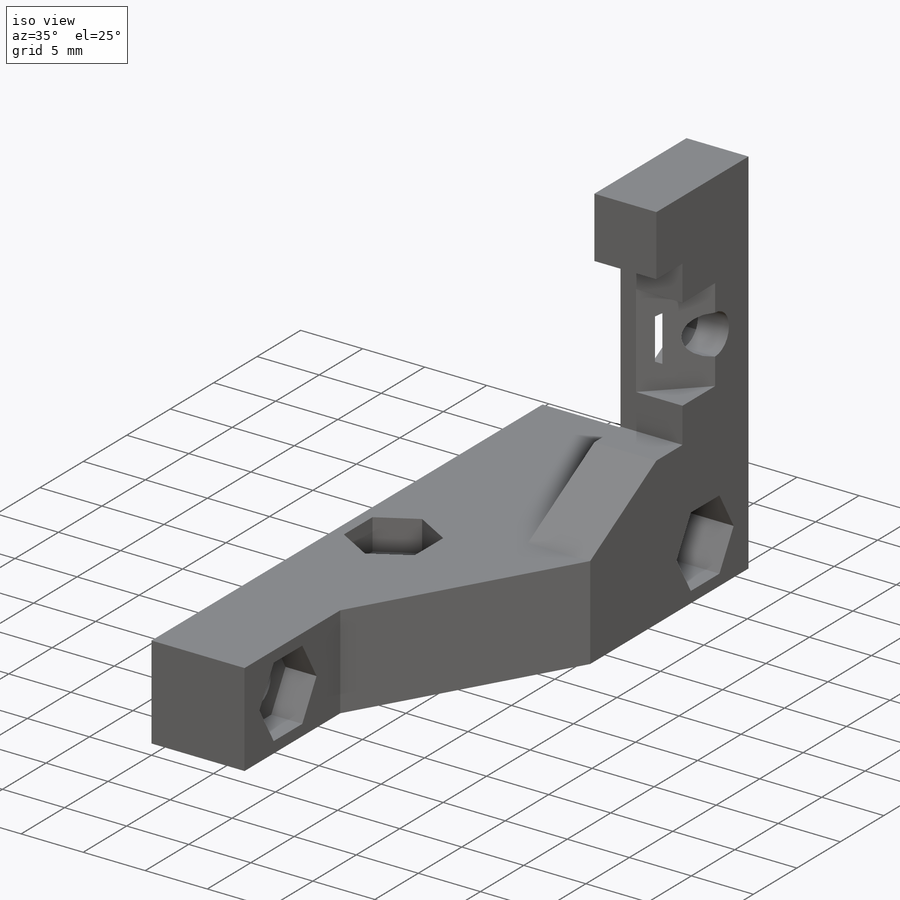
[diagram: iso view]
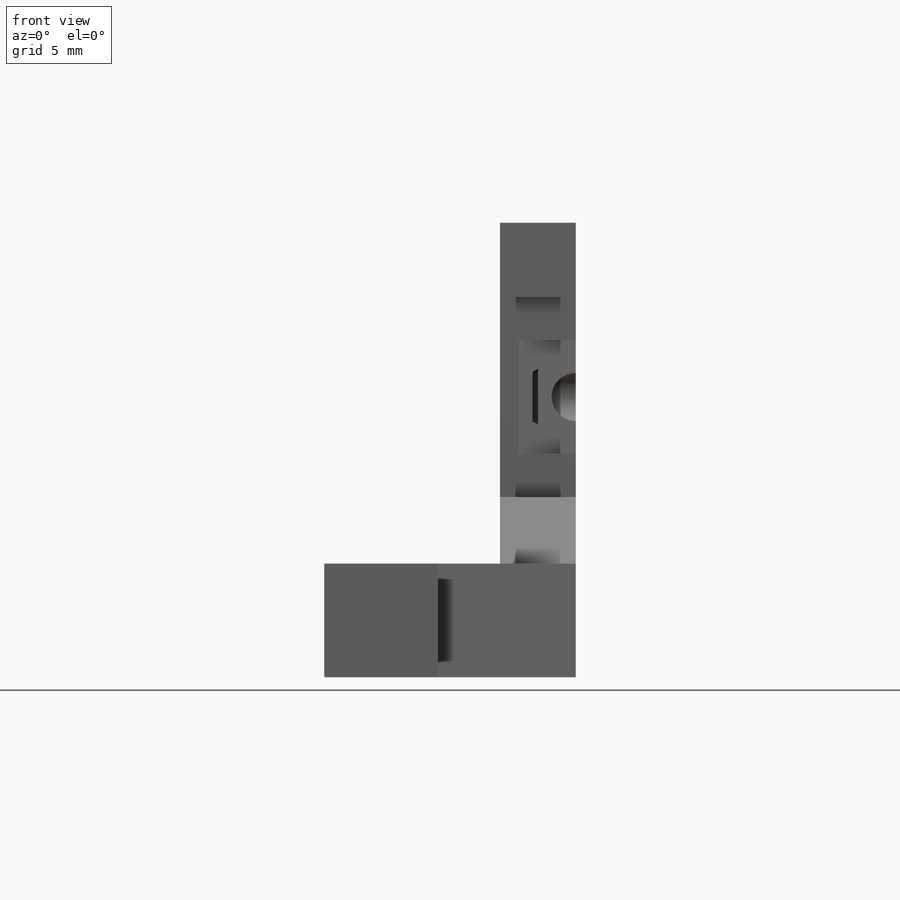
[diagram: front view]
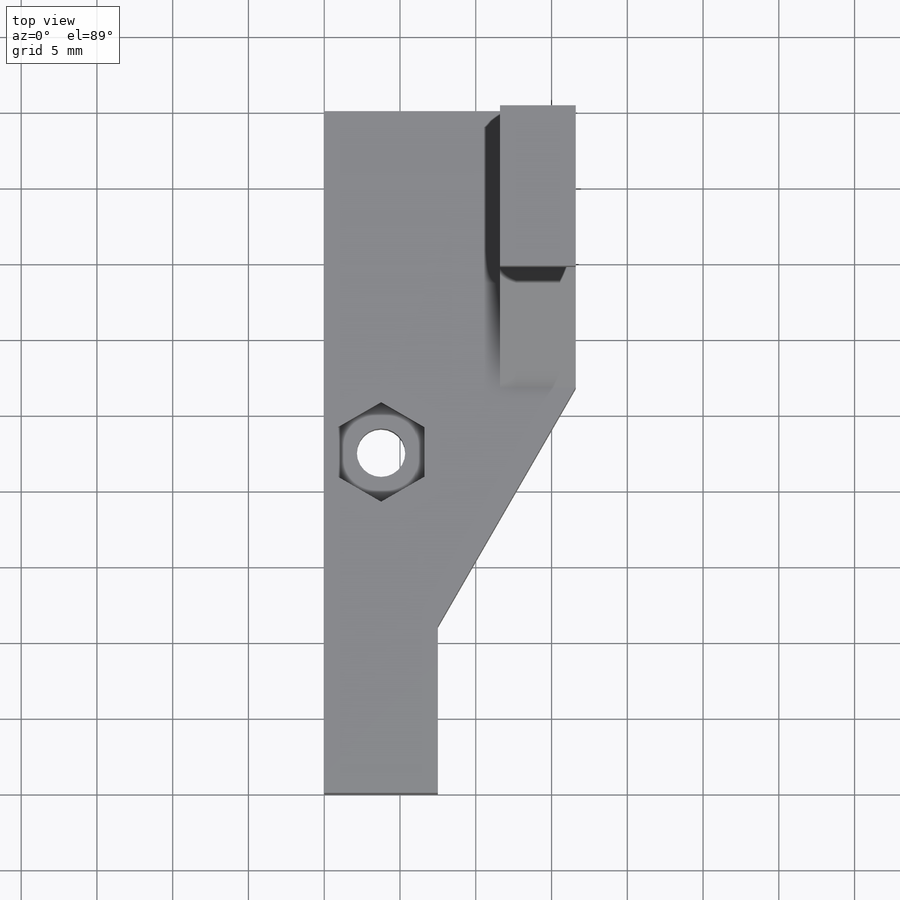
[diagram: top view]
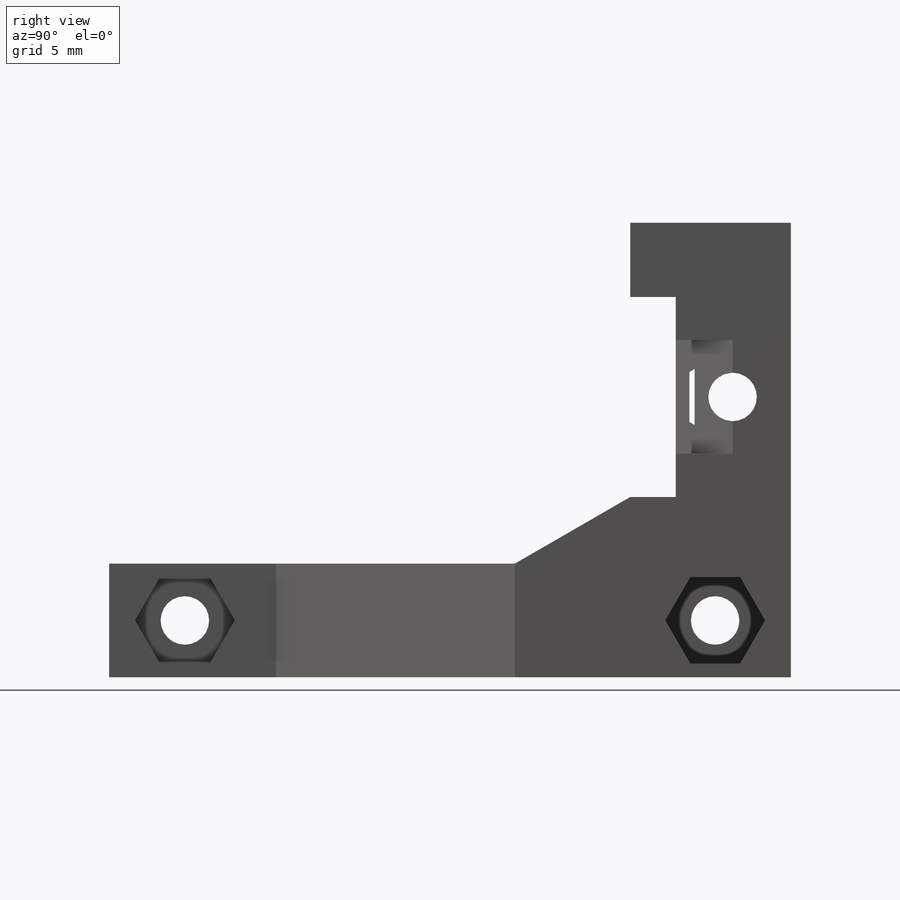
[diagram: right view]
SOLIDWORKS PART (.sldprt)
format: sldprt  version: not decoded by parser v0  size: 336,384 bytes
history: native  units: mm
features: sketch x14, cut_extrude x8, extrude x6, plane x5, material x1 (+13 scaffold rows collapsed)
feature tree (47):
  scaffold x13  (default folders/planes/origin — collapsed)
  material  "Material <sin especificar>"
  plane  "Alzado"
  plane  "Planta"
  plane  "Vista lateral"
  sketch  "Croquis1"  dims[c1.D1=9.0mm c1.D2=7.5mm c1.D3=16.6mm c1.D4=30.0mm c1.D5=10.1mm c2.D1=5.0mm]
  extrude  "Saliente-Extruir1"  Depth=7.6mm
  sketch  "Croquis2"  dims[D2=3.2mm D1=3.75mm D3=18.5mm]
  cut_extrude  "Cortar-Extruir1"  [1 undecoded]
  sketch  "Croquis3"  dims[D1=13.2mm]
  extrude  "Saliente-Extruir2"  Depth=3mm
  sketch  "Croquis4"  dims[c1.D1=4.9mm c2.D1=60.0deg]
  extrude  "Saliente-Extruir3"  [1 undecoded]
  sketch  "Croquis5"  dims[D1=0.0mm]
  extrude  "Saliente-Extruir4"  [1 undecoded]
  sketch  "Croquis6"  dims[c1.D1=7.5mm c1.D2=9.6mm c2.D2=60.0deg]
  extrude  "Saliente-Extruir5"  [1 undecoded]
  plane  "Plano1"  Offset=45mm
  sketch  "Croquis7"  dims[D1=0.0mm]
  extrude  "Saliente-Extruir6"  [1 undecoded]
  sketch  "Croquis8"  dims[D1=3.2mm D2=35.0mm]
  cut_extrude  "Cortar-Extruir2"  [1 undecoded]
  sketch  "Croquis9"  dims[D1=5.7mm]
  cut_extrude  "Cortar-Extruir3"  Depth=2.5mm
  sketch  "Croquis10"  dims[D1=5.7mm]
  cut_extrude  "Cortar-Extruir4"  Depth=2.5mm
  sketch  "Croquis11"  dims[D1=5.7mm]
  cut_extrude  "Cortar-Extruir5"  Depth=4.5mm
  sketch  "Croquis12"  dims[D1=3.2mm]
  cut_extrude  "Cortar-Extruir6"  [1 undecoded]
  sketch  "Croquis13"  dims[D1=5.7mm]
  cut_extrude  "Cortar-Extruir7"  Depth=2.5mm
  plane  "Plano2"
  sketch  "Croquis14"  dims[D1=3.75mm]
  cut_extrude  "Cortar-Extruir8"  Depth=7.5mm
decode coverage: 21 of 28 modeling features carry decoded parameters
note: 7 parameter values undecoded
summary: no parameter record found for 7 features
note: suppression state not decoded; provenance and decode notes live in map.json
